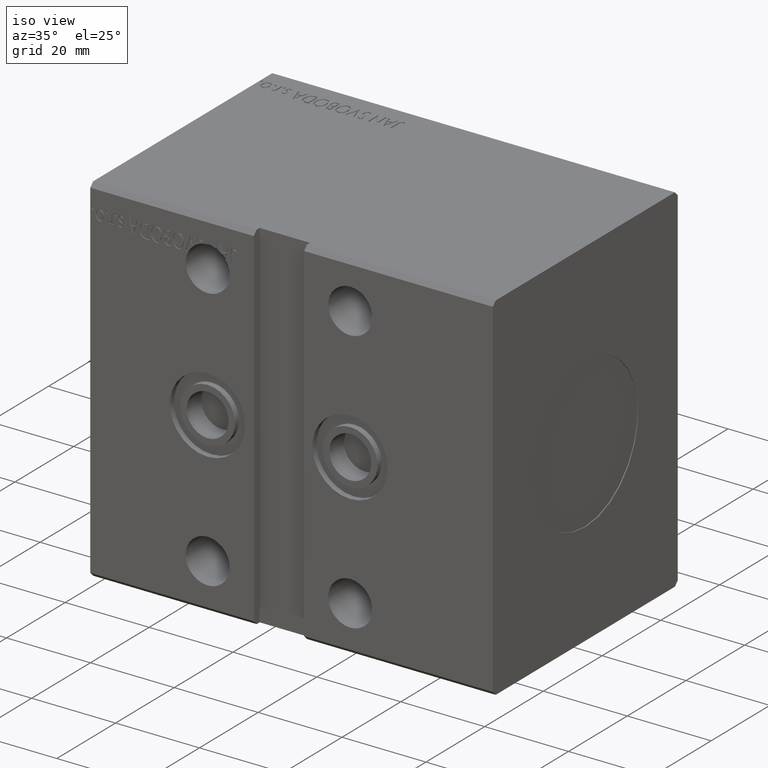
[diagram: clean part render]
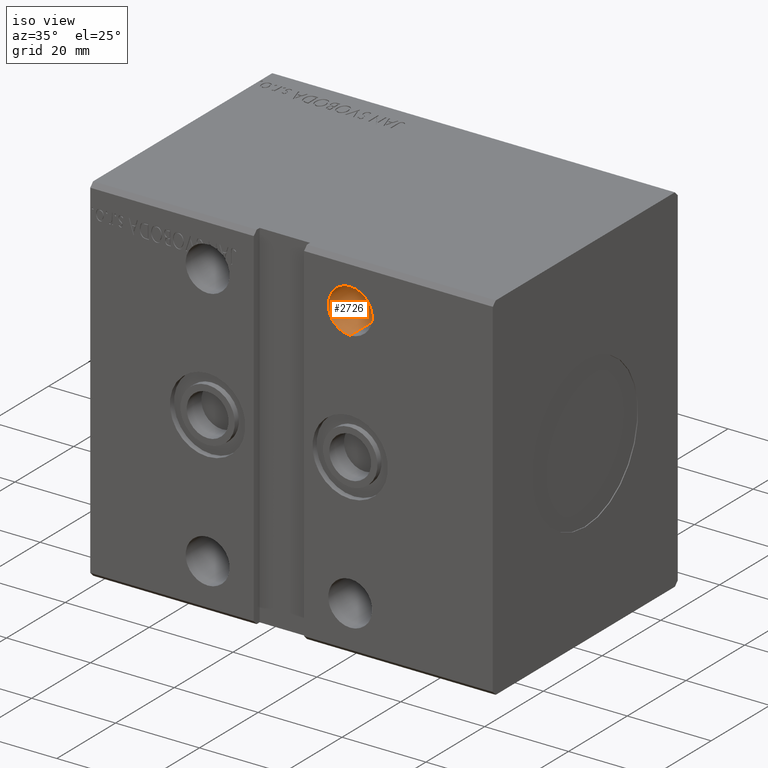
[diagram: same view with one face highlighted and labeled with its STEP entity id]
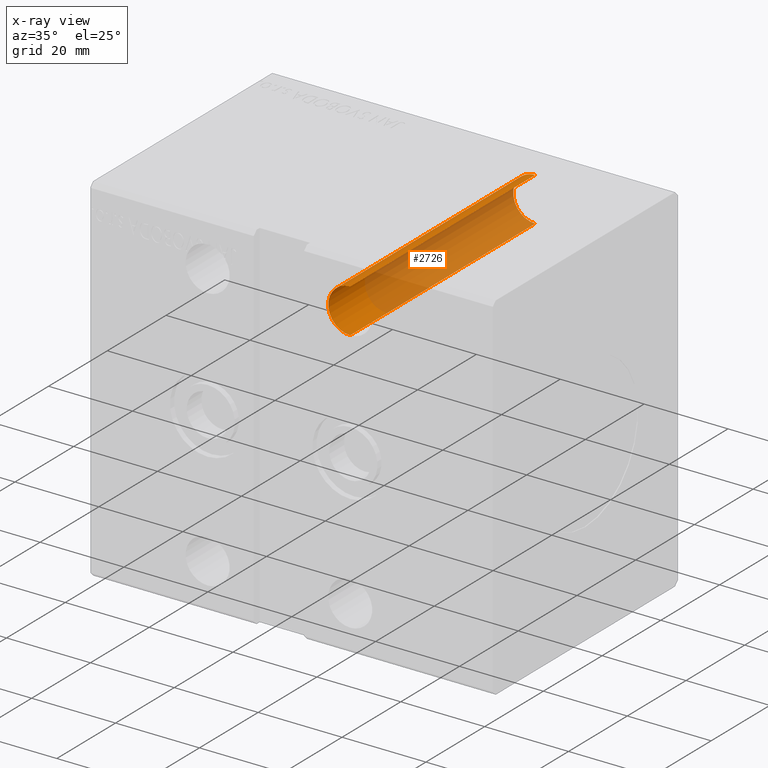
[diagram: x-ray of the same camera — body ghosted, the highlighted face saturated]
A machine part, iso view. The second image highlights one B-rep face of the part: STEP entity #2726.
The next image is the same camera in x-ray: the body ghosted, the highlighted face saturated — about 70% of this face is hidden behind the body in this view.
In plain terms, the highlighted cylindrical surface (edge-blend (fillet) strip) has radius 5.25 mm, axis along (-0, -1, -0).
Its self-contained STEP definition (entity closure, byte-faithful):
#2726 = ADVANCED_FACE ( 'NONE', ( #2776 ), #15328, .F. ) ;
#2776 = FACE_OUTER_BOUND ( 'NONE', #32283, .T. ) ;
#3529 = DIRECTION ( 'NONE',  ( 0.000000000000000000, -1.000000000000000000, -0.000000000000000000 ) ) ;
#6038 = CARTESIAN_POINT ( 'NONE',  ( 62.00000000000000000, -31.50000000000000000, 26.24999999999999645 ) ) ;
#7109 = CARTESIAN_POINT ( 'NONE',  ( 62.00000000000000000, 31.50000000000002842, 36.75000000000001421 ) ) ;
#7828 = CARTESIAN_POINT ( 'NONE',  ( 62.00000000000000000, 31.50000000000002842, 26.25000000000000355 ) ) ;
#7841 = CARTESIAN_POINT ( 'NONE',  ( 62.00000000000000000, -31.50000000000000000, 36.75000000000000711 ) ) ;
#9209 = AXIS2_PLACEMENT_3D ( 'NONE', #27852, #40391, #19022 ) ;
#10132 = ORIENTED_EDGE ( 'NONE', *, *, #32433, .F. ) ;
#11190 = DIRECTION ( 'NONE',  ( 0.000000000000000000, 0.000000000000000000, 1.000000000000000000 ) ) ;
#11602 = VERTEX_POINT ( 'NONE', #31180 ) ;
#12907 = ORIENTED_EDGE ( 'NONE', *, *, #23898, .T. ) ;
#12978 = DIRECTION ( 'NONE',  ( 0.000000000000000000, 0.000000000000000000, 1.000000000000000000 ) ) ;
#12988 = EDGE_CURVE ( 'NONE', #21407, #11602, #16233, .T. ) ;
#13287 = LINE ( 'NONE', #22746, #29683 ) ;
#15328 = CYLINDRICAL_SURFACE ( 'NONE', #9209, 5.250000000000004441 ) ;
#16233 = CIRCLE ( 'NONE', #40495, 5.250000000000004441 ) ;
#16610 = ORIENTED_EDGE ( 'NONE', *, *, #22518, .T. ) ;
#17923 = VERTEX_POINT ( 'NONE', #7841 ) ;
#18192 = ORIENTED_EDGE ( 'NONE', *, *, #12988, .T. ) ;
#19022 = DIRECTION ( 'NONE',  ( 0.000000000000000000, 0.000000000000000000, -1.000000000000000000 ) ) ;
#19660 = DIRECTION ( 'NONE',  ( -0.000000000000000000, -1.000000000000000000, -5.507058653894625853E-17 ) ) ;
#21407 = VERTEX_POINT ( 'NONE', #7828 ) ;
#22518 = EDGE_CURVE ( 'NONE', #11602, #17923, #23149, .T. ) ;
#22746 = CARTESIAN_POINT ( 'NONE',  ( 62.00000000000000000, 31.50000000000002842, 26.25000000000000355 ) ) ;
#23149 = LINE ( 'NONE', #7109, #28125 ) ;
#23898 = EDGE_CURVE ( 'NONE', #17923, #30652, #30828, .T. ) ;
#26211 = CARTESIAN_POINT ( 'NONE',  ( 62.00000000000000000, 31.50000000000002842, 31.50000000000000711 ) ) ;
#27852 = CARTESIAN_POINT ( 'NONE',  ( 62.00000000000000000, 31.50000000000002842, 31.50000000000000711 ) ) ;
#28125 = VECTOR ( 'NONE', #19660, 1000.000000000000000 ) ;
#29683 = VECTOR ( 'NONE', #37743, 1000.000000000000000 ) ;
#30652 = VERTEX_POINT ( 'NONE', #6038 ) ;
#30828 = CIRCLE ( 'NONE', #39339, 5.250000000000004441 ) ;
#31180 = CARTESIAN_POINT ( 'NONE',  ( 62.00000000000000000, 31.50000000000002842, 36.75000000000001421 ) ) ;
#31686 = CARTESIAN_POINT ( 'NONE',  ( 62.00000000000000000, -31.50000000000000000, 31.50000000000000000 ) ) ;
#32283 = EDGE_LOOP ( 'NONE', ( #18192, #16610, #12907, #10132 ) ) ;
#32379 = DIRECTION ( 'NONE',  ( -0.000000000000000000, 1.000000000000000000, 5.507058653894625853E-17 ) ) ;
#32433 = EDGE_CURVE ( 'NONE', #21407, #30652, #13287, .T. ) ;
#37743 = DIRECTION ( 'NONE',  ( -0.000000000000000000, -1.000000000000000000, -5.507058653894625853E-17 ) ) ;
#39339 = AXIS2_PLACEMENT_3D ( 'NONE', #31686, #3529, #12978 ) ;
#40391 = DIRECTION ( 'NONE',  ( -0.000000000000000000, -1.000000000000000000, -5.507058653894625853E-17 ) ) ;
#40495 = AXIS2_PLACEMENT_3D ( 'NONE', #26211, #32379, #11190 ) ;